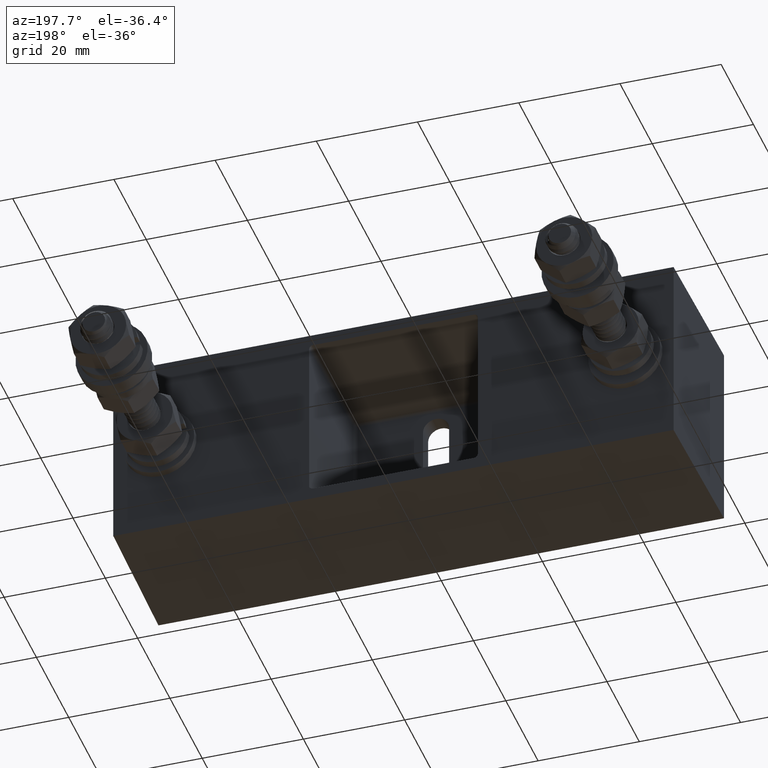
[diagram: clean part render]
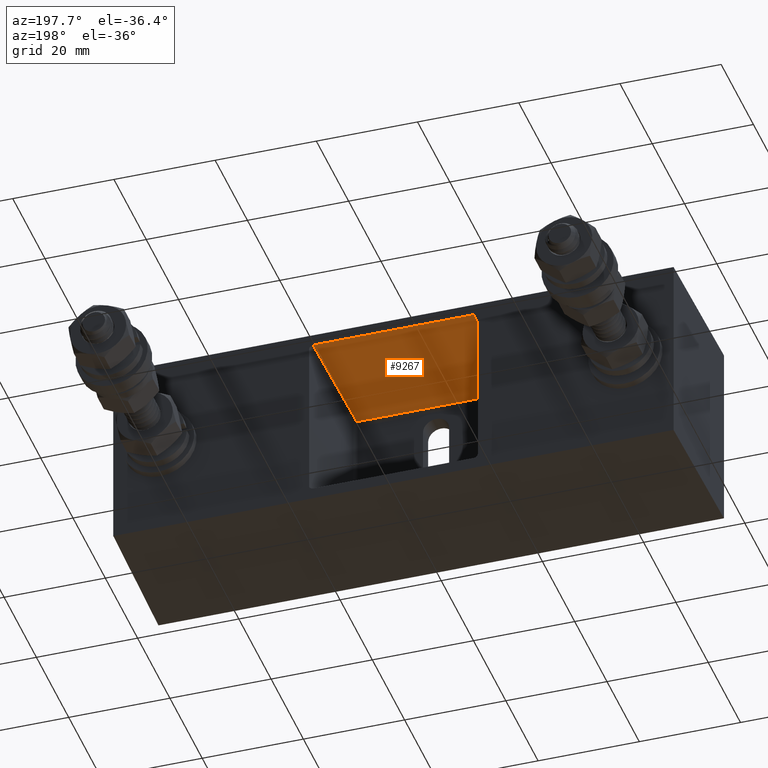
[diagram: same view with one face highlighted and labeled with its STEP entity id]
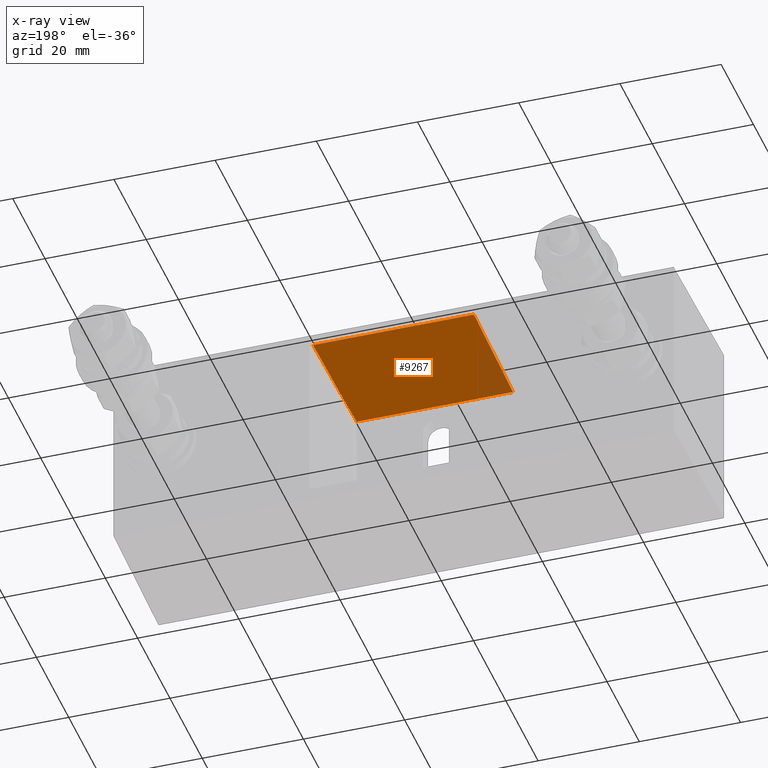
[diagram: x-ray of the same camera — body ghosted, the highlighted face saturated]
A machine part, auxiliary view. The second image highlights one B-rep face of the part: STEP entity #9267.
The next image is the same camera in x-ray: the body ghosted, the highlighted face saturated — about 9% of this face is hidden behind the body in this view.
In plain terms, the highlighted planar face has unit normal (0, 0, -1).
Its self-contained STEP definition (entity closure, byte-faithful):
#11 = CARTESIAN_POINT ( 'NONE',  ( -0.6256486976840254200, 1.165000000000000300, 0.6599999999999999200 ) ) ;
#2169 = CARTESIAN_POINT ( 'NONE',  ( 0.0000000000000000000, 0.0000000000000000000, 0.6599999999999999200 ) ) ;
#2531 = ORIENTED_EDGE ( 'NONE', *, *, #8228, .T. ) ;
#5560 = CARTESIAN_POINT ( 'NONE',  ( -0.6080190821065291100, 0.1550000000000000000, 0.6599999999999999200 ) ) ;
#5804 = DIRECTION ( 'NONE',  ( -1.000000000000000000, -0.0000000000000000000, -0.0000000000000000000 ) ) ;
#6070 = DIRECTION ( 'NONE',  ( -0.01745240643728014300, -0.9998476951563912700, -0.0000000000000000000 ) ) ;
#7034 = DIRECTION ( 'NONE',  ( -1.000000000000000000, 0.0000000000000000000, -0.0000000000000000000 ) ) ;
#7742 = EDGE_CURVE ( 'NONE', #11729, #45413, #11520, .T. ) ;
#8228 = EDGE_CURVE ( 'NONE', #16831, #57518, #34909, .T. ) ;
#8912 = EDGE_CURVE ( 'NONE', #57518, #11729, #31674, .T. ) ;
#9267 = ADVANCED_FACE ( 'NONE', ( #13622 ), #40729, .T. ) ;
#11520 = LINE ( 'NONE', #17000, #61451 ) ;
#11729 = VERTEX_POINT ( 'NONE', #5560 ) ;
#12008 = CARTESIAN_POINT ( 'NONE',  ( 0.6256486976840253100, 1.165000000000000300, 0.6599999999999999200 ) ) ;
#13622 = FACE_OUTER_BOUND ( 'NONE', #34123, .T. ) ;
#14192 = AXIS2_PLACEMENT_3D ( 'NONE', #2169, #36061, #7034 ) ;
#16831 = VERTEX_POINT ( 'NONE', #12008 ) ;
#17000 = CARTESIAN_POINT ( 'NONE',  ( -0.6051291767137391100, -0.01056256906949512700, 0.6599999999999999200 ) ) ;
#17184 = ORIENTED_EDGE ( 'NONE', *, *, #8912, .T. ) ;
#26687 = LINE ( 'NONE', #39719, #39606 ) ;
#31674 = LINE ( 'NONE', #38027, #44554 ) ;
#34123 = EDGE_LOOP ( 'NONE', ( #43126, #2531, #17184, #61036 ) ) ;
#34909 = LINE ( 'NONE', #54339, #46253 ) ;
#36061 = DIRECTION ( 'NONE',  ( 0.0000000000000000000, 0.0000000000000000000, -1.000000000000000000 ) ) ;
#38027 = CARTESIAN_POINT ( 'NONE',  ( 0.0000000000000000000, 0.1550000000000000000, 0.6599999999999999200 ) ) ;
#39606 = VECTOR ( 'NONE', #5804, 39.37007874015748100 ) ;
#39719 = CARTESIAN_POINT ( 'NONE',  ( -0.6556532675253427000, 1.165000000000000300, 0.6599999999999999200 ) ) ;
#40729 = PLANE ( 'NONE',  #14192 ) ;
#43126 = ORIENTED_EDGE ( 'NONE', *, *, #58238, .F. ) ;
#44554 = VECTOR ( 'NONE', #47976, 39.37007874015748100 ) ;
#45413 = VERTEX_POINT ( 'NONE', #11 ) ;
#46253 = VECTOR ( 'NONE', #6070, 39.37007874015748100 ) ;
#47976 = DIRECTION ( 'NONE',  ( -1.000000000000000000, -0.0000000000000000000, -0.0000000000000000000 ) ) ;
#54339 = CARTESIAN_POINT ( 'NONE',  ( 0.6051291767137391100, -0.01056256906949512700, 0.6599999999999999200 ) ) ;
#54806 = CARTESIAN_POINT ( 'NONE',  ( 0.6080190821065291100, 0.1550000000000000000, 0.6599999999999999200 ) ) ;
#55621 = DIRECTION ( 'NONE',  ( -0.01745240643728014300, 0.9998476951563912700, -0.0000000000000000000 ) ) ;
#57518 = VERTEX_POINT ( 'NONE', #54806 ) ;
#58238 = EDGE_CURVE ( 'NONE', #16831, #45413, #26687, .T. ) ;
#61036 = ORIENTED_EDGE ( 'NONE', *, *, #7742, .T. ) ;
#61451 = VECTOR ( 'NONE', #55621, 39.37007874015748100 ) ;